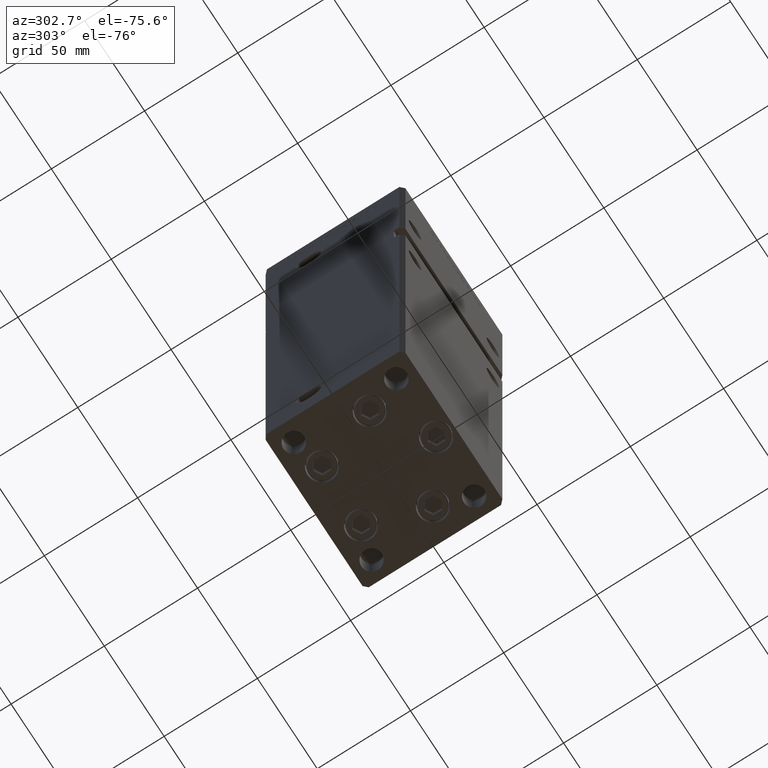
[diagram: clean part render]
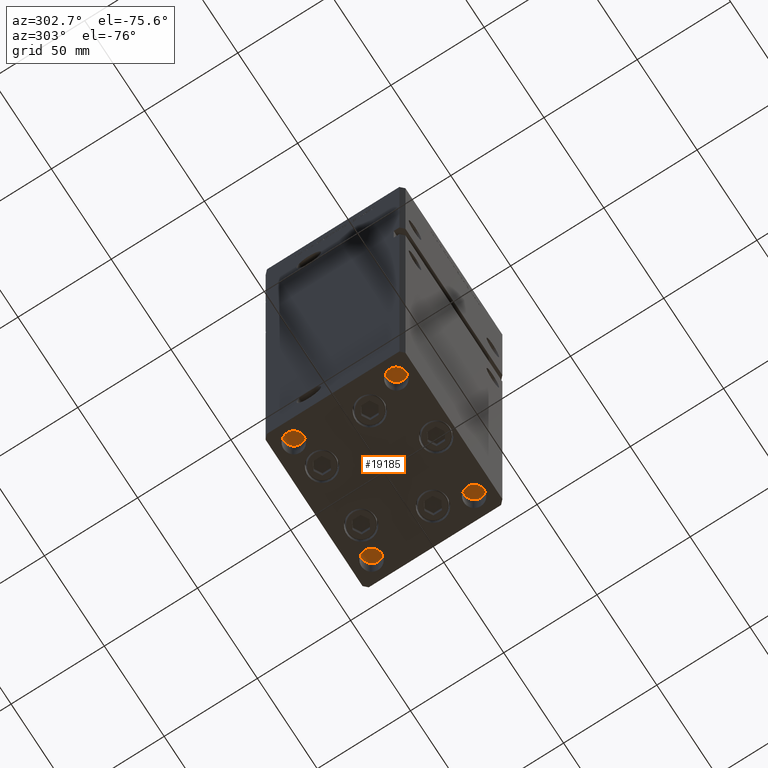
[diagram: same view with one face highlighted and labeled with its STEP entity id]
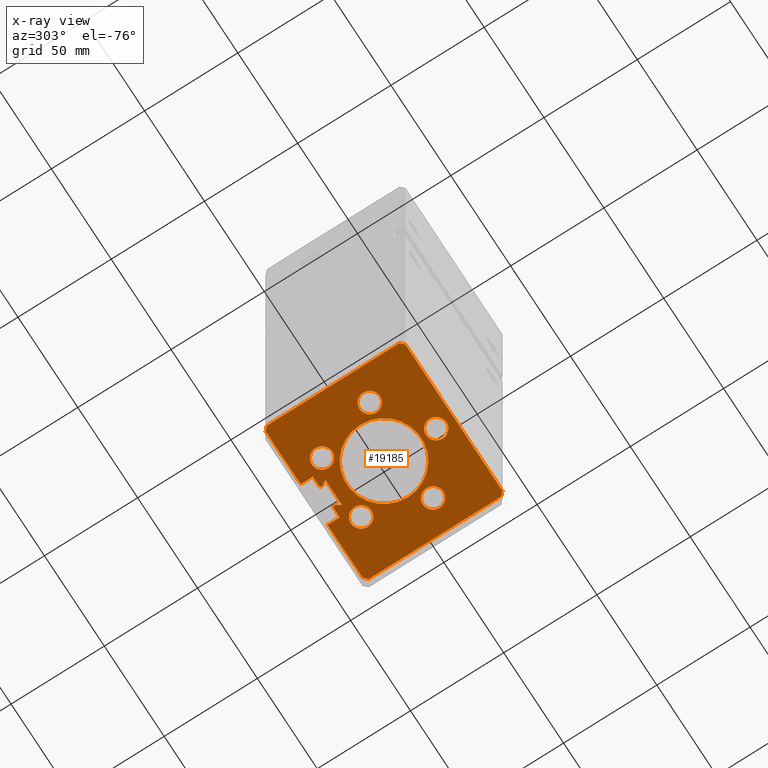
[diagram: x-ray of the same camera — body ghosted, the highlighted face saturated]
A machine part, auxiliary view. The second image highlights one B-rep face of the part: STEP entity #19185.
The next image is the same camera in x-ray: the body ghosted, the highlighted face saturated — about 0% of this face is hidden behind the body in this view.
In plain terms, the highlighted planar face has unit normal (0, 0, -1).
Its self-contained STEP definition (entity closure, byte-faithful):
#196 = CARTESIAN_POINT ( 'NONE',  ( -40.49999999999998579, -37.50000000000000711, 0.000000000000000000 ) ) ;
#272 = CARTESIAN_POINT ( 'NONE',  ( -5.375042956467947164, 29.59999999999899245, 0.000000000000000000 ) ) ;
#286 = CIRCLE ( 'NONE', #20896, 0.9333333333340008142 ) ;
#796 = DIRECTION ( 'NONE',  ( 0.000000000000000000, 0.000000000000000000, -1.000000000000000000 ) ) ;
#948 = CARTESIAN_POINT ( 'NONE',  ( 6.183333333333997928, 31.00000000000000000, 0.000000000000000000 ) ) ;
#1077 = CIRCLE ( 'NONE', #13077, 20.00000000000000000 ) ;
#1322 = FACE_BOUND ( 'NONE', #36706, .T. ) ;
#1328 = EDGE_CURVE ( 'NONE', #45040, #33495, #27416, .T. ) ;
#1543 = CARTESIAN_POINT ( 'NONE',  ( 42.49999999999998579, -35.50000000000000711, 0.000000000000000000 ) ) ;
#1611 = VERTEX_POINT ( 'NONE', #46999 ) ;
#1692 = EDGE_CURVE ( 'NONE', #33495, #45040, #30874, .T. ) ;
#2166 = DIRECTION ( 'NONE',  ( 0.000000000000000000, 1.000000000000000000, 0.000000000000000000 ) ) ;
#2236 = EDGE_CURVE ( 'NONE', #39093, #36267, #9718, .T. ) ;
#2606 = DIRECTION ( 'NONE',  ( 1.000000000000000000, -0.000000000000000000, -0.000000000000000000 ) ) ;
#2621 = CARTESIAN_POINT ( 'NONE',  ( 42.50000000000001421, 35.50000000000000711, 0.000000000000000000 ) ) ;
#2665 = LINE ( 'NONE', #26113, #27730 ) ;
#2725 = VERTEX_POINT ( 'NONE', #41592 ) ;
#2826 = AXIS2_PLACEMENT_3D ( 'NONE', #40849, #796, #17182 ) ;
#2962 = LINE ( 'NONE', #39237, #36202 ) ;
#3359 = CIRCLE ( 'NONE', #26390, 0.9333333333340008142 ) ;
#3461 = CARTESIAN_POINT ( 'NONE',  ( 40.50000000000000711, 37.50000000000000000, 0.000000000000000000 ) ) ;
#3464 = VERTEX_POINT ( 'NONE', #26870 ) ;
#3601 = ORIENTED_EDGE ( 'NONE', *, *, #26321, .F. ) ;
#3834 = CARTESIAN_POINT ( 'NONE',  ( -40.50000000000000711, 37.50000000000000000, 0.000000000000000000 ) ) ;
#3962 = CARTESIAN_POINT ( 'NONE',  ( -10.82291334290543894, 22.74999999999999645, 0.000000000000000000 ) ) ;
#3977 = EDGE_LOOP ( 'NONE', ( #11903, #42505 ) ) ;
#4197 = DIRECTION ( 'NONE',  ( 0.000000000000000000, 0.000000000000000000, -1.000000000000000000 ) ) ;
#4446 = VERTEX_POINT ( 'NONE', #30176 ) ;
#5295 = ORIENTED_EDGE ( 'NONE', *, *, #35820, .T. ) ;
#5409 = DIRECTION ( 'NONE',  ( 0.000000000000000000, 0.000000000000000000, -1.000000000000000000 ) ) ;
#5516 = VECTOR ( 'NONE', #7219, 1000.000000000000000 ) ;
#6145 = FACE_BOUND ( 'NONE', #22701, .T. ) ;
#6170 = DIRECTION ( 'NONE',  ( -0.000000000000000000, 0.000000000000000000, 1.000000000000000000 ) ) ;
#6254 = CIRCLE ( 'NONE', #18310, 5.499999999999998224 ) ;
#6688 = DIRECTION ( 'NONE',  ( 0.000000000000000000, 0.000000000000000000, -1.000000000000000000 ) ) ;
#6973 = CARTESIAN_POINT ( 'NONE',  ( 0.000000000000000000, 0.000000000000000000, 0.000000000000000000 ) ) ;
#6985 = VECTOR ( 'NONE', #17214, 1000.000000000000114 ) ;
#7107 = DIRECTION ( 'NONE',  ( -0.7071067811865474617, -0.7071067811865474617, 0.000000000000000000 ) ) ;
#7219 = DIRECTION ( 'NONE',  ( -1.000000000000000000, 0.000000000000000000, 0.000000000000000000 ) ) ;
#8575 = CARTESIAN_POINT ( 'NONE',  ( 42.50000000000001421, 35.50000000000000711, 0.000000000000000000 ) ) ;
#8659 = DIRECTION ( 'NONE',  ( 1.000000000000000000, 0.000000000000000000, 0.000000000000000000 ) ) ;
#8790 = DIRECTION ( 'NONE',  ( 0.7071067811865474617, -0.7071067811865474617, 0.000000000000000000 ) ) ;
#8898 = AXIS2_PLACEMENT_3D ( 'NONE', #22552, #51030, #14200 ) ;
#8952 = VERTEX_POINT ( 'NONE', #24373 ) ;
#9068 = EDGE_LOOP ( 'NONE', ( #42580, #39024, #23714, #17267, #40381, #5295, #12643, #25547, #33291, #12149, #33931, #9684, #45110, #27736, #3601, #43980, #19419, #35955, #47118 ) ) ;
#9121 = LINE ( 'NONE', #17717, #20125 ) ;
#9142 = ORIENTED_EDGE ( 'NONE', *, *, #16618, .F. ) ;
#9267 = LINE ( 'NONE', #26460, #34614 ) ;
#9684 = ORIENTED_EDGE ( 'NONE', *, *, #51122, .T. ) ;
#9718 = LINE ( 'NONE', #34449, #17123 ) ;
#10713 = DIRECTION ( 'NONE',  ( -0.000000000000000000, -0.000000000000000000, -1.000000000000000000 ) ) ;
#10949 = CARTESIAN_POINT ( 'NONE',  ( 6.183333333333997928, 30.06666666666599852, 0.000000000000000000 ) ) ;
#10997 = ORIENTED_EDGE ( 'NONE', *, *, #25836, .T. ) ;
#11516 = DIRECTION ( 'NONE',  ( 0.7071067811865500152, -0.7071067811865451302, 0.000000000000000000 ) ) ;
#11538 = CARTESIAN_POINT ( 'NONE',  ( 6.876153656360465938, 26.99999999999986855, 0.000000000000000000 ) ) ;
#11650 = CARTESIAN_POINT ( 'NONE',  ( 40.50000000000000711, 37.50000000000000000, 0.000000000000000000 ) ) ;
#11903 = ORIENTED_EDGE ( 'NONE', *, *, #28414, .F. ) ;
#12149 = ORIENTED_EDGE ( 'NONE', *, *, #12405, .T. ) ;
#12231 = EDGE_CURVE ( 'NONE', #14220, #51036, #50516, .T. ) ;
#12378 = VERTEX_POINT ( 'NONE', #22585 ) ;
#12405 = EDGE_CURVE ( 'NONE', #36267, #23839, #2962, .T. ) ;
#12643 = ORIENTED_EDGE ( 'NONE', *, *, #40887, .T. ) ;
#12752 = ORIENTED_EDGE ( 'NONE', *, *, #39058, .F. ) ;
#13077 = AXIS2_PLACEMENT_3D ( 'NONE', #48107, #15582, #32261 ) ;
#13287 = DIRECTION ( 'NONE',  ( 3.909236002201255146E-16, -1.000000000000000000, 0.000000000000000000 ) ) ;
#13434 = EDGE_CURVE ( 'NONE', #36534, #28540, #25891, .T. ) ;
#14018 = ORIENTED_EDGE ( 'NONE', *, *, #13434, .F. ) ;
#14200 = DIRECTION ( 'NONE',  ( -1.000000000000000000, 0.000000000000000000, -0.000000000000000000 ) ) ;
#14220 = VERTEX_POINT ( 'NONE', #3834 ) ;
#14296 = AXIS2_PLACEMENT_3D ( 'NONE', #23792, #36933, #48228 ) ;
#14420 = LINE ( 'NONE', #2621, #22849 ) ;
#14464 = DIRECTION ( 'NONE',  ( -1.000000000000000000, 0.000000000000000000, 0.000000000000000000 ) ) ;
#14465 = FACE_BOUND ( 'NONE', #46345, .T. ) ;
#14468 = CARTESIAN_POINT ( 'NONE',  ( -11.24999999999999822, 37.50000000000000000, 0.000000000000000000 ) ) ;
#14708 = DIRECTION ( 'NONE',  ( 0.000000000000000000, 0.000000000000000000, -1.000000000000000000 ) ) ;
#14951 = CARTESIAN_POINT ( 'NONE',  ( -6.183333333333997928, 31.00000000000000000, 0.000000000000000000 ) ) ;
#15304 = DIRECTION ( 'NONE',  ( -0.4999999999999993894, 0.8660254037844389297, 0.000000000000000000 ) ) ;
#15582 = DIRECTION ( 'NONE',  ( -0.000000000000000000, 0.000000000000000000, 1.000000000000000000 ) ) ;
#15800 = CARTESIAN_POINT ( 'NONE',  ( -6.183333333333997928, 30.06666666666599852, 0.000000000000000000 ) ) ;
#15821 = AXIS2_PLACEMENT_3D ( 'NONE', #6973, #6170, #52129 ) ;
#15973 = VECTOR ( 'NONE', #15304, 1000.000000000000227 ) ;
#16246 = AXIS2_PLACEMENT_3D ( 'NONE', #30149, #5409, #47329 ) ;
#16310 = EDGE_CURVE ( 'NONE', #22668, #46611, #43160, .T. ) ;
#16561 = DIRECTION ( 'NONE',  ( -1.000000000000000000, 0.000000000000000000, 0.000000000000000000 ) ) ;
#16618 = EDGE_CURVE ( 'NONE', #24109, #12378, #49152, .T. ) ;
#16647 = VERTEX_POINT ( 'NONE', #272 ) ;
#16866 = VERTEX_POINT ( 'NONE', #37236 ) ;
#17077 = VERTEX_POINT ( 'NONE', #11650 ) ;
#17123 = VECTOR ( 'NONE', #35257, 1000.000000000000000 ) ;
#17182 = DIRECTION ( 'NONE',  ( -1.000000000000000000, 0.000000000000000000, 0.000000000000000000 ) ) ;
#17197 = ORIENTED_EDGE ( 'NONE', *, *, #29228, .T. ) ;
#17214 = DIRECTION ( 'NONE',  ( -0.7071067811865500152, -0.7071067811865451302, 0.000000000000000000 ) ) ;
#17267 = ORIENTED_EDGE ( 'NONE', *, *, #27240, .T. ) ;
#17717 = CARTESIAN_POINT ( 'NONE',  ( 6.876153656360465938, 26.99999999999986855, 0.000000000000000000 ) ) ;
#18254 = CARTESIAN_POINT ( 'NONE',  ( -42.50000000000001421, 35.50000000000000711, 0.000000000000000000 ) ) ;
#18310 = AXIS2_PLACEMENT_3D ( 'NONE', #20841, #37227, #40723 ) ;
#18353 = AXIS2_PLACEMENT_3D ( 'NONE', #47004, #6688, #23103 ) ;
#18525 = FACE_BOUND ( 'NONE', #50844, .T. ) ;
#19060 = DIRECTION ( 'NONE',  ( 0.000000000000000000, 0.000000000000000000, -1.000000000000000000 ) ) ;
#19185 = ADVANCED_FACE ( 'NONE', ( #14465, #43233, #18525, #34916, #1322, #46738, #6145 ), #46469, .T. ) ;
#19213 = VERTEX_POINT ( 'NONE', #21489 ) ;
#19294 = EDGE_CURVE ( 'NONE', #8952, #14220, #39734, .T. ) ;
#19339 = VERTEX_POINT ( 'NONE', #44303 ) ;
#19353 = ORIENTED_EDGE ( 'NONE', *, *, #40047, .F. ) ;
#19419 = ORIENTED_EDGE ( 'NONE', *, *, #32111, .F. ) ;
#19682 = EDGE_CURVE ( 'NONE', #44415, #22668, #32618, .T. ) ;
#20053 = CIRCLE ( 'NONE', #18353, 5.499999999999998224 ) ;
#20125 = VECTOR ( 'NONE', #22287, 1000.000000000000000 ) ;
#20238 = AXIS2_PLACEMENT_3D ( 'NONE', #29724, #4197, #16561 ) ;
#20263 = CARTESIAN_POINT ( 'NONE',  ( 11.24999999999999822, 31.00000000000000000, 0.000000000000000000 ) ) ;
#20614 = CARTESIAN_POINT ( 'NONE',  ( -6.876153656360465938, 26.99999999999986855, 0.000000000000000000 ) ) ;
#20841 = CARTESIAN_POINT ( 'NONE',  ( 26.39865316429776954, -9.333333333333339255, 0.000000000000000000 ) ) ;
#20896 = AXIS2_PLACEMENT_3D ( 'NONE', #15800, #10713, #51554 ) ;
#21489 = CARTESIAN_POINT ( 'NONE',  ( 31.89865316429776954, -9.333333333333339255, 0.000000000000000000 ) ) ;
#21516 = CARTESIAN_POINT ( 'NONE',  ( -40.50000000000000711, 37.50000000000000000, 0.000000000000000000 ) ) ;
#21651 = VECTOR ( 'NONE', #8790, 1000.000000000000114 ) ;
#21821 = ORIENTED_EDGE ( 'NONE', *, *, #1692, .F. ) ;
#22156 = CARTESIAN_POINT ( 'NONE',  ( 10.82291334290543716, 22.75000000000000000, 0.000000000000000000 ) ) ;
#22287 = DIRECTION ( 'NONE',  ( 1.000000000000000000, -0.000000000000000000, -0.000000000000000000 ) ) ;
#22526 = DIRECTION ( 'NONE',  ( -1.000000000000000000, 0.000000000000000000, 0.000000000000000000 ) ) ;
#22552 = CARTESIAN_POINT ( 'NONE',  ( 0.000000000000000000, 0.000000000000000000, 0.000000000000000000 ) ) ;
#22585 = CARTESIAN_POINT ( 'NONE',  ( -21.82291334290543361, 22.74999999999999645, 0.000000000000000000 ) ) ;
#22668 = VERTEX_POINT ( 'NONE', #22760 ) ;
#22701 = EDGE_LOOP ( 'NONE', ( #17197, #10997 ) ) ;
#22709 = VERTEX_POINT ( 'NONE', #43967 ) ;
#22760 = CARTESIAN_POINT ( 'NONE',  ( -6.183333333333997928, 31.00000000000000000, 0.000000000000000000 ) ) ;
#22849 = VECTOR ( 'NONE', #27600, 1000.000000000000000 ) ;
#23099 = DIRECTION ( 'NONE',  ( -1.000000000000000000, 0.000000000000000000, 0.000000000000000000 ) ) ;
#23103 = DIRECTION ( 'NONE',  ( -1.000000000000000000, 0.000000000000000000, 0.000000000000000000 ) ) ;
#23714 = ORIENTED_EDGE ( 'NONE', *, *, #16310, .T. ) ;
#23792 = CARTESIAN_POINT ( 'NONE',  ( 26.39865316429776954, -9.333333333333339255, 0.000000000000000000 ) ) ;
#23839 = VERTEX_POINT ( 'NONE', #41880 ) ;
#24109 = VERTEX_POINT ( 'NONE', #3962 ) ;
#24233 = ORIENTED_EDGE ( 'NONE', *, *, #27662, .F. ) ;
#24373 = CARTESIAN_POINT ( 'NONE',  ( -11.24999999999999822, 37.50000000000000000, 0.000000000000000000 ) ) ;
#24612 = CIRCLE ( 'NONE', #14296, 5.499999999999998224 ) ;
#24892 = EDGE_CURVE ( 'NONE', #22709, #27860, #41571, .T. ) ;
#25178 = VECTOR ( 'NONE', #7107, 1000.000000000000114 ) ;
#25374 = CIRCLE ( 'NONE', #32250, 5.499999999999998224 ) ;
#25508 = EDGE_CURVE ( 'NONE', #8952, #44415, #2665, .T. ) ;
#25547 = ORIENTED_EDGE ( 'NONE', *, *, #48050, .T. ) ;
#25836 = EDGE_CURVE ( 'NONE', #48323, #30045, #1077, .T. ) ;
#25891 = CIRCLE ( 'NONE', #37891, 5.499999999999998224 ) ;
#25902 = VERTEX_POINT ( 'NONE', #8575 ) ;
#26113 = CARTESIAN_POINT ( 'NONE',  ( -11.24999999999999822, 31.00000000000000000, 0.000000000000000000 ) ) ;
#26321 = EDGE_CURVE ( 'NONE', #27860, #4446, #32458, .T. ) ;
#26328 = CARTESIAN_POINT ( 'NONE',  ( -6.876153656360465938, 26.99999999999986855, 0.000000000000000000 ) ) ;
#26390 = AXIS2_PLACEMENT_3D ( 'NONE', #10949, #32185, #27351 ) ;
#26460 = CARTESIAN_POINT ( 'NONE',  ( -42.50000000000001421, 35.50000000000000711, 0.000000000000000000 ) ) ;
#26870 = CARTESIAN_POINT ( 'NONE',  ( 6.876153656360465938, 26.99999999999986855, 0.000000000000000000 ) ) ;
#27151 = LINE ( 'NONE', #11538, #15973 ) ;
#27240 = EDGE_CURVE ( 'NONE', #46611, #16647, #286, .T. ) ;
#27351 = DIRECTION ( 'NONE',  ( 1.000000000000000000, 0.000000000000000000, 0.000000000000000000 ) ) ;
#27416 = CIRCLE ( 'NONE', #16246, 5.500000000000000000 ) ;
#27600 = DIRECTION ( 'NONE',  ( -3.909236002201255146E-16, -1.000000000000000000, 0.000000000000000000 ) ) ;
#27654 = CARTESIAN_POINT ( 'NONE',  ( -11.24999999999999822, 37.50000000000000000, 0.000000000000000000 ) ) ;
#27662 = EDGE_CURVE ( 'NONE', #19213, #16866, #6254, .T. ) ;
#27730 = VECTOR ( 'NONE', #50551, 1000.000000000000000 ) ;
#27736 = ORIENTED_EDGE ( 'NONE', *, *, #33082, .T. ) ;
#27860 = VERTEX_POINT ( 'NONE', #43901 ) ;
#27919 = EDGE_LOOP ( 'NONE', ( #21821, #50774 ) ) ;
#28279 = CARTESIAN_POINT ( 'NONE',  ( -11.24999999999999822, 31.00000000000000000, 0.000000000000000000 ) ) ;
#28414 = EDGE_CURVE ( 'NONE', #31449, #19339, #20053, .T. ) ;
#28540 = VERTEX_POINT ( 'NONE', #49329 ) ;
#28966 = CARTESIAN_POINT ( 'NONE',  ( -42.49999999999998579, -35.50000000000000711, 0.000000000000000000 ) ) ;
#29228 = EDGE_CURVE ( 'NONE', #30045, #48323, #49280, .T. ) ;
#29724 = CARTESIAN_POINT ( 'NONE',  ( -16.32291334290543361, 22.74999999999999645, 0.000000000000000000 ) ) ;
#30045 = VERTEX_POINT ( 'NONE', #32252 ) ;
#30149 = CARTESIAN_POINT ( 'NONE',  ( 1.714505518806294638E-15, -28.00000000000000000, 0.000000000000000000 ) ) ;
#30176 = CARTESIAN_POINT ( 'NONE',  ( 40.49999999999998579, -37.50000000000000711, 0.000000000000000000 ) ) ;
#30874 = CIRCLE ( 'NONE', #48014, 5.500000000000000000 ) ;
#31449 = VERTEX_POINT ( 'NONE', #22156 ) ;
#31527 = VECTOR ( 'NONE', #42716, 1000.000000000000227 ) ;
#31706 = LINE ( 'NONE', #26328, #31527 ) ;
#32111 = EDGE_CURVE ( 'NONE', #51036, #22709, #9267, .T. ) ;
#32185 = DIRECTION ( 'NONE',  ( -0.000000000000000000, -0.000000000000000000, -1.000000000000000000 ) ) ;
#32235 = DIRECTION ( 'NONE',  ( -1.000000000000000000, 0.000000000000000000, 0.000000000000000000 ) ) ;
#32250 = AXIS2_PLACEMENT_3D ( 'NONE', #48351, #48611, #32235 ) ;
#32252 = CARTESIAN_POINT ( 'NONE',  ( -20.00000000000000000, 0.000000000000000000, 0.000000000000000000 ) ) ;
#32261 = DIRECTION ( 'NONE',  ( 1.000000000000000000, 0.000000000000000000, 0.000000000000000000 ) ) ;
#32291 = CARTESIAN_POINT ( 'NONE',  ( -5.249999999999996447, 30.06666666666599852, 0.000000000000000000 ) ) ;
#32458 = LINE ( 'NONE', #196, #40559 ) ;
#32618 = LINE ( 'NONE', #14951, #35552 ) ;
#33082 = EDGE_CURVE ( 'NONE', #2725, #4446, #44198, .T. ) ;
#33291 = ORIENTED_EDGE ( 'NONE', *, *, #2236, .T. ) ;
#33495 = VERTEX_POINT ( 'NONE', #33874 ) ;
#33874 = CARTESIAN_POINT ( 'NONE',  ( -5.499999999999998224, -28.00000000000000000, 0.000000000000000000 ) ) ;
#33931 = ORIENTED_EDGE ( 'NONE', *, *, #35920, .F. ) ;
#33954 = CIRCLE ( 'NONE', #20238, 5.499999999999998224 ) ;
#34449 = CARTESIAN_POINT ( 'NONE',  ( 6.183333333333997928, 31.00000000000000000, 0.000000000000000000 ) ) ;
#34614 = VECTOR ( 'NONE', #13287, 1000.000000000000000 ) ;
#34916 = FACE_BOUND ( 'NONE', #27919, .T. ) ;
#35257 = DIRECTION ( 'NONE',  ( 1.000000000000000000, 0.000000000000000000, 0.000000000000000000 ) ) ;
#35552 = VECTOR ( 'NONE', #2606, 1000.000000000000000 ) ;
#35820 = EDGE_CURVE ( 'NONE', #44973, #3464, #9121, .T. ) ;
#35920 = EDGE_CURVE ( 'NONE', #17077, #23839, #47536, .T. ) ;
#35955 = ORIENTED_EDGE ( 'NONE', *, *, #12231, .F. ) ;
#36202 = VECTOR ( 'NONE', #2166, 1000.000000000000000 ) ;
#36267 = VERTEX_POINT ( 'NONE', #20263 ) ;
#36534 = VERTEX_POINT ( 'NONE', #49437 ) ;
#36706 = EDGE_LOOP ( 'NONE', ( #19353, #14018 ) ) ;
#36933 = DIRECTION ( 'NONE',  ( 0.000000000000000000, 0.000000000000000000, -1.000000000000000000 ) ) ;
#37207 = CARTESIAN_POINT ( 'NONE',  ( 16.32291334290543361, 22.75000000000000000, 0.000000000000000000 ) ) ;
#37227 = DIRECTION ( 'NONE',  ( 0.000000000000000000, 0.000000000000000000, -1.000000000000000000 ) ) ;
#37236 = CARTESIAN_POINT ( 'NONE',  ( 20.89865316429777309, -9.333333333333339255, 0.000000000000000000 ) ) ;
#37891 = AXIS2_PLACEMENT_3D ( 'NONE', #44009, #14708, #22526 ) ;
#38977 = VECTOR ( 'NONE', #23099, 1000.000000000000000 ) ;
#39024 = ORIENTED_EDGE ( 'NONE', *, *, #19682, .T. ) ;
#39058 = EDGE_CURVE ( 'NONE', #12378, #24109, #33954, .T. ) ;
#39093 = VERTEX_POINT ( 'NONE', #948 ) ;
#39237 = CARTESIAN_POINT ( 'NONE',  ( 11.24999999999999822, 31.00000000000000000, 0.000000000000000000 ) ) ;
#39734 = LINE ( 'NONE', #27654, #38977 ) ;
#40047 = EDGE_CURVE ( 'NONE', #28540, #36534, #25374, .T. ) ;
#40284 = EDGE_CURVE ( 'NONE', #25902, #2725, #14420, .T. ) ;
#40381 = ORIENTED_EDGE ( 'NONE', *, *, #42702, .T. ) ;
#40532 = LINE ( 'NONE', #3461, #50461 ) ;
#40559 = VECTOR ( 'NONE', #41298, 1000.000000000000000 ) ;
#40695 = CARTESIAN_POINT ( 'NONE',  ( 20.00000000000000000, 2.449293598294706513E-15, 0.000000000000000000 ) ) ;
#40723 = DIRECTION ( 'NONE',  ( -1.000000000000000000, 0.000000000000000000, 0.000000000000000000 ) ) ;
#40849 = CARTESIAN_POINT ( 'NONE',  ( -16.32291334290543361, 22.74999999999999645, 0.000000000000000000 ) ) ;
#40887 = EDGE_CURVE ( 'NONE', #3464, #1611, #27151, .T. ) ;
#41298 = DIRECTION ( 'NONE',  ( 1.000000000000000000, 0.000000000000000000, 0.000000000000000000 ) ) ;
#41482 = EDGE_CURVE ( 'NONE', #16866, #19213, #24612, .T. ) ;
#41571 = LINE ( 'NONE', #28966, #21651 ) ;
#41592 = CARTESIAN_POINT ( 'NONE',  ( 42.49999999999998579, -35.50000000000000711, 0.000000000000000000 ) ) ;
#41880 = CARTESIAN_POINT ( 'NONE',  ( 11.24999999999999822, 37.50000000000000000, 0.000000000000000000 ) ) ;
#42505 = ORIENTED_EDGE ( 'NONE', *, *, #48897, .F. ) ;
#42580 = ORIENTED_EDGE ( 'NONE', *, *, #25508, .T. ) ;
#42702 = EDGE_CURVE ( 'NONE', #16647, #44973, #31706, .T. ) ;
#42716 = DIRECTION ( 'NONE',  ( -0.4999999999999993894, -0.8660254037844389297, -0.000000000000000000 ) ) ;
#43160 = CIRCLE ( 'NONE', #50009, 0.9333333333340008142 ) ;
#43233 = FACE_BOUND ( 'NONE', #3977, .T. ) ;
#43901 = CARTESIAN_POINT ( 'NONE',  ( -40.49999999999998579, -37.50000000000000711, 0.000000000000000000 ) ) ;
#43967 = CARTESIAN_POINT ( 'NONE',  ( -42.49999999999998579, -35.50000000000000711, 0.000000000000000000 ) ) ;
#43980 = ORIENTED_EDGE ( 'NONE', *, *, #24892, .F. ) ;
#44009 = CARTESIAN_POINT ( 'NONE',  ( -26.39865316429776954, -9.333333333333342807, 0.000000000000000000 ) ) ;
#44198 = LINE ( 'NONE', #1543, #25178 ) ;
#44302 = CARTESIAN_POINT ( 'NONE',  ( 1.714505518806294638E-15, -28.00000000000000000, 0.000000000000000000 ) ) ;
#44303 = CARTESIAN_POINT ( 'NONE',  ( 21.82291334290543361, 22.75000000000000000, 0.000000000000000000 ) ) ;
#44304 = ORIENTED_EDGE ( 'NONE', *, *, #41482, .F. ) ;
#44415 = VERTEX_POINT ( 'NONE', #28279 ) ;
#44973 = VERTEX_POINT ( 'NONE', #20614 ) ;
#45040 = VERTEX_POINT ( 'NONE', #47681 ) ;
#45110 = ORIENTED_EDGE ( 'NONE', *, *, #40284, .T. ) ;
#45479 = CARTESIAN_POINT ( 'NONE',  ( -6.183333333333997928, 30.06666666666599852, 0.000000000000000000 ) ) ;
#46052 = DIRECTION ( 'NONE',  ( -1.000000000000000000, 0.000000000000000000, 0.000000000000000000 ) ) ;
#46345 = EDGE_LOOP ( 'NONE', ( #12752, #9142 ) ) ;
#46469 = PLANE ( 'NONE',  #8898 ) ;
#46611 = VERTEX_POINT ( 'NONE', #32291 ) ;
#46738 = FACE_OUTER_BOUND ( 'NONE', #9068, .T. ) ;
#46986 = AXIS2_PLACEMENT_3D ( 'NONE', #37207, #49298, #46052 ) ;
#46999 = CARTESIAN_POINT ( 'NONE',  ( 5.375042956467947164, 29.59999999999899245, 0.000000000000000000 ) ) ;
#47004 = CARTESIAN_POINT ( 'NONE',  ( 16.32291334290543361, 22.75000000000000000, 0.000000000000000000 ) ) ;
#47118 = ORIENTED_EDGE ( 'NONE', *, *, #19294, .F. ) ;
#47329 = DIRECTION ( 'NONE',  ( -1.000000000000000000, 0.000000000000000000, 0.000000000000000000 ) ) ;
#47536 = LINE ( 'NONE', #14468, #5516 ) ;
#47681 = CARTESIAN_POINT ( 'NONE',  ( 5.500000000000001776, -28.00000000000000000, 0.000000000000000000 ) ) ;
#48014 = AXIS2_PLACEMENT_3D ( 'NONE', #44302, #19060, #14464 ) ;
#48050 = EDGE_CURVE ( 'NONE', #1611, #39093, #3359, .T. ) ;
#48107 = CARTESIAN_POINT ( 'NONE',  ( 0.000000000000000000, 0.000000000000000000, 0.000000000000000000 ) ) ;
#48228 = DIRECTION ( 'NONE',  ( -1.000000000000000000, 0.000000000000000000, 0.000000000000000000 ) ) ;
#48323 = VERTEX_POINT ( 'NONE', #40695 ) ;
#48351 = CARTESIAN_POINT ( 'NONE',  ( -26.39865316429776954, -9.333333333333342807, 0.000000000000000000 ) ) ;
#48611 = DIRECTION ( 'NONE',  ( 0.000000000000000000, 0.000000000000000000, -1.000000000000000000 ) ) ;
#48897 = EDGE_CURVE ( 'NONE', #19339, #31449, #49555, .T. ) ;
#49152 = CIRCLE ( 'NONE', #2826, 5.499999999999998224 ) ;
#49280 = CIRCLE ( 'NONE', #15821, 20.00000000000000000 ) ;
#49298 = DIRECTION ( 'NONE',  ( 0.000000000000000000, 0.000000000000000000, -1.000000000000000000 ) ) ;
#49329 = CARTESIAN_POINT ( 'NONE',  ( -31.89865316429776954, -9.333333333333342807, 0.000000000000000000 ) ) ;
#49437 = CARTESIAN_POINT ( 'NONE',  ( -20.89865316429777309, -9.333333333333342807, 0.000000000000000000 ) ) ;
#49555 = CIRCLE ( 'NONE', #46986, 5.499999999999998224 ) ;
#49768 = DIRECTION ( 'NONE',  ( -0.000000000000000000, -0.000000000000000000, -1.000000000000000000 ) ) ;
#50009 = AXIS2_PLACEMENT_3D ( 'NONE', #45479, #49768, #8659 ) ;
#50461 = VECTOR ( 'NONE', #11516, 1000.000000000000114 ) ;
#50516 = LINE ( 'NONE', #21516, #6985 ) ;
#50551 = DIRECTION ( 'NONE',  ( -0.000000000000000000, -1.000000000000000000, -0.000000000000000000 ) ) ;
#50774 = ORIENTED_EDGE ( 'NONE', *, *, #1328, .F. ) ;
#50844 = EDGE_LOOP ( 'NONE', ( #44304, #24233 ) ) ;
#51030 = DIRECTION ( 'NONE',  ( 0.000000000000000000, 0.000000000000000000, -1.000000000000000000 ) ) ;
#51036 = VERTEX_POINT ( 'NONE', #18254 ) ;
#51122 = EDGE_CURVE ( 'NONE', #17077, #25902, #40532, .T. ) ;
#51554 = DIRECTION ( 'NONE',  ( 1.000000000000000000, 0.000000000000000000, 0.000000000000000000 ) ) ;
#52129 = DIRECTION ( 'NONE',  ( 1.000000000000000000, 0.000000000000000000, 0.000000000000000000 ) ) ;